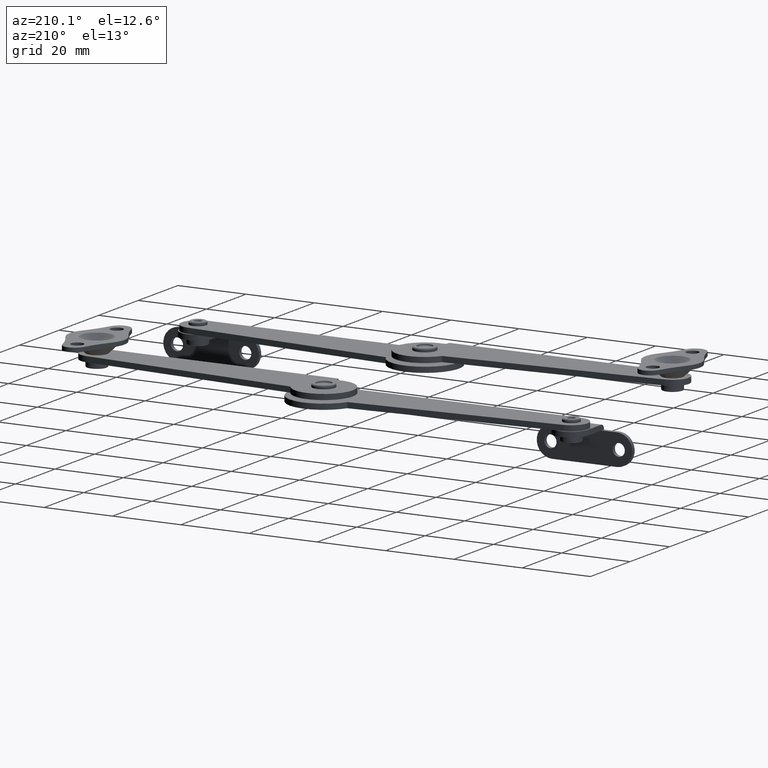
[diagram: clean part render]
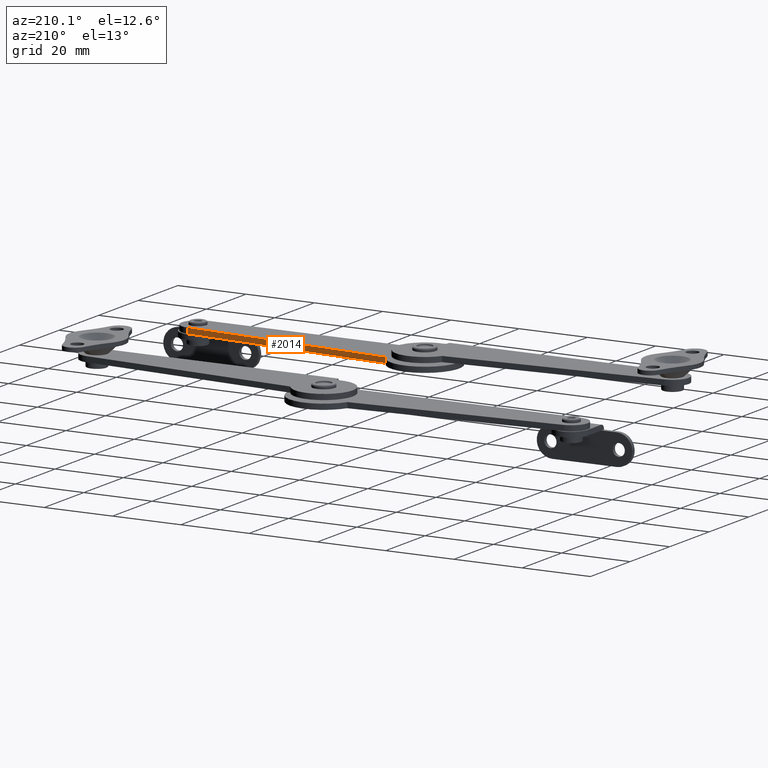
[diagram: same view with one face highlighted and labeled with its STEP entity id]
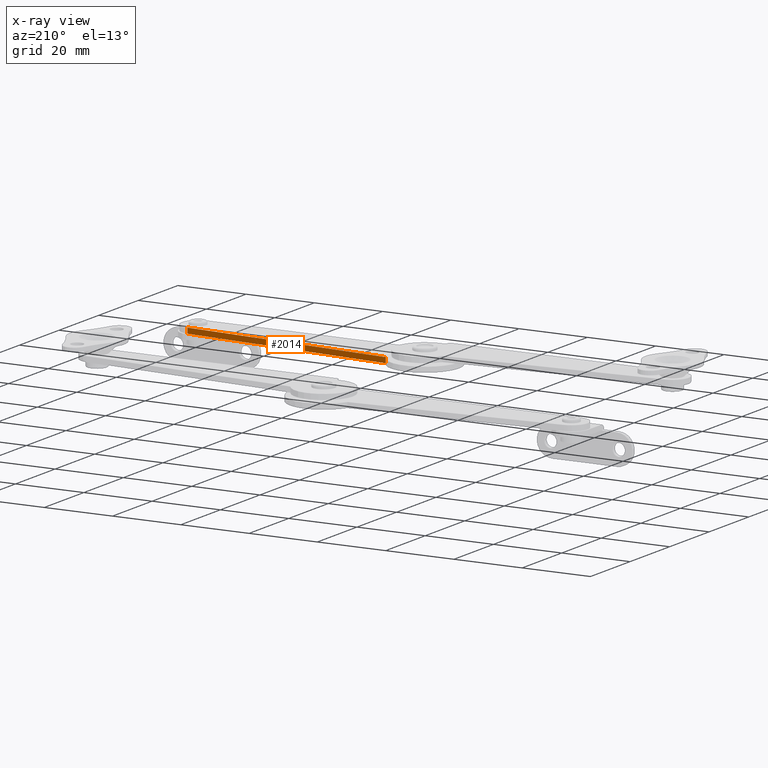
[diagram: x-ray of the same camera — body ghosted, the highlighted face saturated]
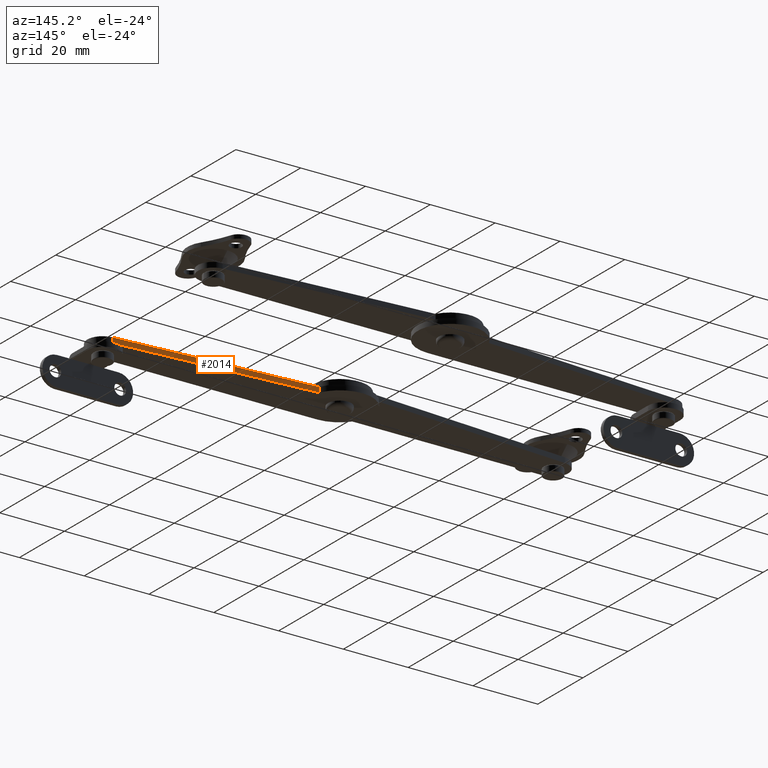
[diagram: same view with one face highlighted and labeled with its STEP entity id]
A machine part, auxiliary view. The second image highlights one B-rep face of the part: STEP entity #2014.
The next image is the same camera in x-ray: the body ghosted, the highlighted face saturated — about 0% of this face is hidden behind the body in this view.
A second angle (auxiliary view) of the same face is appended — the face is thin or edge-on in the first view.
In plain terms, the highlighted planar face has unit normal (0.0742, 0.9972, -0).
Its self-contained STEP definition (entity closure, byte-faithful):
#281=PLANE('',#2173);
#349=FACE_OUTER_BOUND('',#490,.T.);
#490=EDGE_LOOP('',(#1521,#1522,#1523,#1524));
#856=LINE('',#3214,#955);
#860=LINE('',#3234,#959);
#861=LINE('',#3238,#960);
#862=LINE('',#3239,#961);
#955=VECTOR('',#2494,60.8546954375881);
#959=VECTOR('',#2516,1.6);
#960=VECTOR('',#2521,60.8546954375881);
#961=VECTOR('',#2522,1.6);
#1056=VERTEX_POINT('',#3211);
#1057=VERTEX_POINT('',#3213);
#1064=VERTEX_POINT('',#3233);
#1065=VERTEX_POINT('',#3237);
#1248=EDGE_CURVE('',#1056,#1057,#856,.T.);
#1257=EDGE_CURVE('',#1064,#1057,#860,.T.);
#1259=EDGE_CURVE('',#1065,#1064,#861,.T.);
#1260=EDGE_CURVE('',#1065,#1056,#862,.T.);
#1521=ORIENTED_EDGE('',*,*,#1259,.T.);
#1522=ORIENTED_EDGE('',*,*,#1257,.T.);
#1523=ORIENTED_EDGE('',*,*,#1248,.F.);
#1524=ORIENTED_EDGE('',*,*,#1260,.F.);
#2014=ADVANCED_FACE('',(#349),#281,.T.);
#2173=AXIS2_PLACEMENT_3D('',#3236,#2519,#2520);
#2494=DIRECTION('',(-0.997246238420361,0.0741615800562579,0.));
#2516=DIRECTION('',(0.,0.,1.));
#2519=DIRECTION('center_axis',(0.074161580056258,0.997246238420361,0.));
#2520=DIRECTION('ref_axis',(-0.997246238420361,0.074161580056258,0.));
#2521=DIRECTION('',(-0.997246238420361,0.0741615800562579,0.));
#2522=DIRECTION('',(0.,0.,1.));
#3211=CARTESIAN_POINT('',(69.8522675052672,-0.513080367503286,1.6));
#3213=CARTESIAN_POINT('',(9.16515138991579,3.9999999999906,1.6));
#3214=CARTESIAN_POINT('',(69.8522675052672,-0.513080367503286,1.6));
#3233=CARTESIAN_POINT('',(9.16515138991578,3.9999999999906,0.));
#3234=CARTESIAN_POINT('',(9.16515138991578,3.9999999999906,0.));
#3236=CARTESIAN_POINT('Origin',(69.8522675052672,-0.513080367503286,0.));
#3237=CARTESIAN_POINT('',(69.8522675052672,-0.513080367503286,0.));
#3238=CARTESIAN_POINT('',(69.8522675052672,-0.513080367503286,0.));
#3239=CARTESIAN_POINT('',(69.8522675052672,-0.513080367503286,0.));